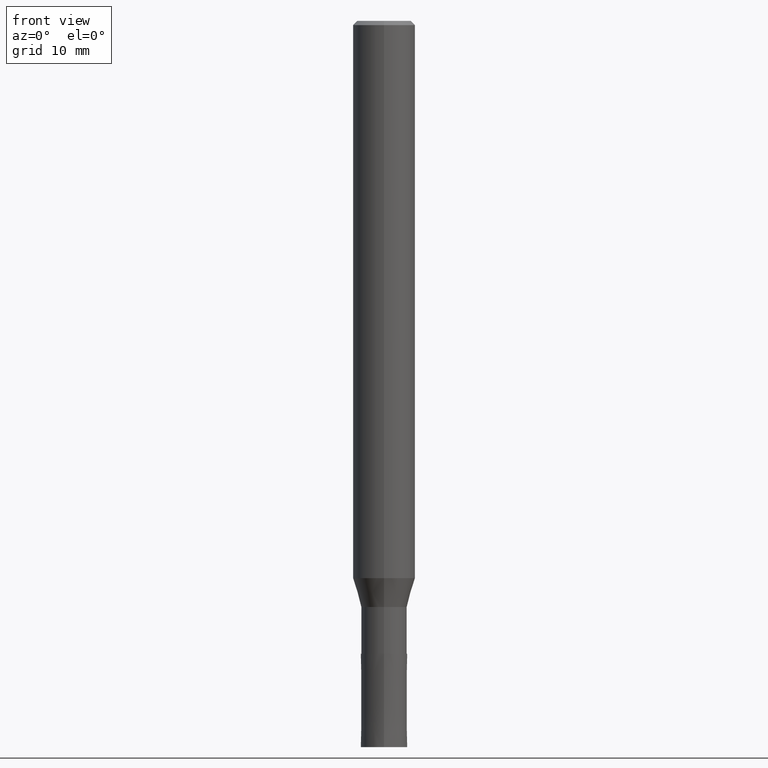
[diagram: clean part render]
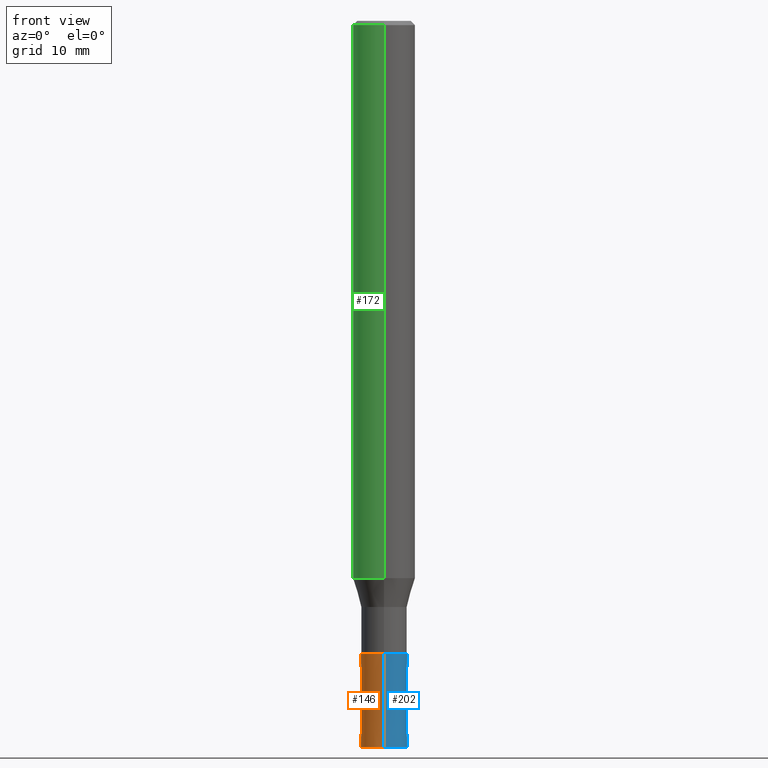
[diagram: same view with three faces highlighted in distinct colors, each labeled with its STEP entity id]
A machine part, front view with three faces highlighted in distinct colors.
Their STEP definitions:

[orange] entity #146 — the highlighted conical surface has half-angle 0.001 deg.
#92=VERTEX_POINT('',#229);
#106=EDGE_CURVE('',#92,#148,#243,.T.);
#134=VERTEX_POINT('',#274);
#136=EDGE_CURVE('',#134,#148,#276,.T.);
#146=ADVANCED_FACE('',(#288),#289,.T.);
#148=VERTEX_POINT('',#291);
#150=VERTEX_POINT('',#293);
#154=EDGE_CURVE('',#92,#150,#297,.T.);
#174=EDGE_CURVE('',#150,#134,#321,.T.);
#229=CARTESIAN_POINT('',(2.75536429610035E-016,-2.25,-70.0));
#243=CIRCLE('',#394,2.25);
#274=CARTESIAN_POINT('',(0.0,2.2499,-61.0));
#276=LINE('',#437,#438);
#288=FACE_OUTER_BOUND('',#451,.T.);
#289=CONICAL_SURFACE('',#452,2.24995,1.11111111106773E-005);
#291=CARTESIAN_POINT('',(0.0,2.25,-70.0));
#293=CARTESIAN_POINT('',(2.75524183546497E-016,-2.2499,-61.0));
#297=LINE('',#462,#463);
#321=CIRCLE('',#493,2.2499);
#394=AXIS2_PLACEMENT_3D('',#551,#552,#553);
#437=CARTESIAN_POINT('',(-2.75530306578266E-016,2.24995,-65.5));
#438=VECTOR('',#591,1.0);
#451=EDGE_LOOP('',(#610,#611,#612,#613));
#452=AXIS2_PLACEMENT_3D('',#614,#615,#616);
#462=CARTESIAN_POINT('',(2.75530306578266E-016,-2.24995,-65.5));
#463=VECTOR('',#620,1.0);
#493=AXIS2_PLACEMENT_3D('',#661,#662,#663);
#551=CARTESIAN_POINT('',(0.0,0.0,-70.0));
#552=DIRECTION('',(0.0,0.0,-1.0));
#553=DIRECTION('',(0.0,1.0,0.0));
#591=DIRECTION('',(-1.36067372638819E-021,1.11111111104487E-005,-0.999999999938272));
#610=ORIENTED_EDGE('',*,*,#136,.T.);
#611=ORIENTED_EDGE('',*,*,#106,.F.);
#612=ORIENTED_EDGE('',*,*,#154,.T.);
#613=ORIENTED_EDGE('',*,*,#174,.T.);
#614=CARTESIAN_POINT('',(0.0,0.0,-65.5));
#615=DIRECTION('',(0.0,-0.0,-1.0));
#616=DIRECTION('',(0.0,1.0,0.0));
#620=DIRECTION('',(-1.36067372638819E-021,1.11111111104487E-005,0.999999999938272));
#661=CARTESIAN_POINT('',(0.0,0.0,-61.0));
#662=DIRECTION('',(0.0,0.0,-1.0));
#663=DIRECTION('',(0.0,1.0,0.0));

[blue] entity #202 — the highlighted conical surface has half-angle 0.001 deg.
#92=VERTEX_POINT('',#229);
#108=EDGE_CURVE('',#148,#92,#245,.T.);
#134=VERTEX_POINT('',#274);
#136=EDGE_CURVE('',#134,#148,#276,.T.);
#138=EDGE_CURVE('',#134,#150,#278,.T.);
#148=VERTEX_POINT('',#291);
#150=VERTEX_POINT('',#293);
#154=EDGE_CURVE('',#92,#150,#297,.T.);
#202=ADVANCED_FACE('',(#353),#354,.T.);
#229=CARTESIAN_POINT('',(2.75536429610035E-016,-2.25,-70.0));
#245=CIRCLE('',#397,2.25);
#274=CARTESIAN_POINT('',(0.0,2.2499,-61.0));
#276=LINE('',#437,#438);
#278=CIRCLE('',#441,2.2499);
#291=CARTESIAN_POINT('',(0.0,2.25,-70.0));
#293=CARTESIAN_POINT('',(2.75524183546497E-016,-2.2499,-61.0));
#297=LINE('',#462,#463);
#353=FACE_OUTER_BOUND('',#531,.T.);
#354=CONICAL_SURFACE('',#532,2.24995,1.11111111106773E-005);
#397=AXIS2_PLACEMENT_3D('',#554,#555,#556);
#437=CARTESIAN_POINT('',(-2.75530306578266E-016,2.24995,-65.5));
#438=VECTOR('',#591,1.0);
#441=AXIS2_PLACEMENT_3D('',#592,#593,#594);
#462=CARTESIAN_POINT('',(2.75530306578266E-016,-2.24995,-65.5));
#463=VECTOR('',#620,1.0);
#531=EDGE_LOOP('',(#696,#697,#698,#699));
#532=AXIS2_PLACEMENT_3D('',#700,#701,#702);
#554=CARTESIAN_POINT('',(0.0,0.0,-70.0));
#555=DIRECTION('',(0.0,0.0,-1.0));
#556=DIRECTION('',(0.0,1.0,0.0));
#591=DIRECTION('',(-1.36067372638819E-021,1.11111111104487E-005,-0.999999999938272));
#592=CARTESIAN_POINT('',(0.0,0.0,-61.0));
#593=DIRECTION('',(0.0,0.0,-1.0));
#594=DIRECTION('',(0.0,1.0,0.0));
#620=DIRECTION('',(-1.36067372638819E-021,1.11111111104487E-005,0.999999999938272));
#696=ORIENTED_EDGE('',*,*,#136,.F.);
#697=ORIENTED_EDGE('',*,*,#138,.T.);
#698=ORIENTED_EDGE('',*,*,#154,.F.);
#699=ORIENTED_EDGE('',*,*,#108,.F.);
#700=CARTESIAN_POINT('',(0.0,0.0,-65.5));
#701=DIRECTION('',(0.0,-0.0,-1.0));
#702=DIRECTION('',(0.0,1.0,0.0));

[green] entity #172 — the highlighted cylindrical surface (edge-blend (fillet) strip) has radius 3 mm, axis along (-0, -0, 1).
#100=EDGE_CURVE('',#114,#132,#237,.T.);
#114=VERTEX_POINT('',#252);
#116=VERTEX_POINT('',#254);
#118=EDGE_CURVE('',#180,#132,#256,.T.);
#132=VERTEX_POINT('',#272);
#164=EDGE_CURVE('',#116,#114,#309,.T.);
#172=ADVANCED_FACE('',(#318),#319,.T.);
#180=VERTEX_POINT('',#327);
#190=EDGE_CURVE('',#180,#116,#341,.T.);
#237=LINE('',#384,#385);
#252=CARTESIAN_POINT('',(0.0,3.0,-0.399999999999999));
#254=CARTESIAN_POINT('',(3.67381906146713E-016,-3.0,-0.399999999999999));
#256=CIRCLE('',#411,3.0);
#272=CARTESIAN_POINT('',(0.0,3.0,-53.71));
#309=CIRCLE('',#477,3.0);
#318=FACE_OUTER_BOUND('',#489,.T.);
#319=CYLINDRICAL_SURFACE('',#490,3.0);
#327=CARTESIAN_POINT('',(3.67381906146713E-016,-3.0,-53.71));
#341=LINE('',#518,#519);
#384=CARTESIAN_POINT('',(-3.67381906146713E-016,3.0,-27.055));
#385=VECTOR('',#549,1.0);
#411=AXIS2_PLACEMENT_3D('',#564,#565,#566);
#477=AXIS2_PLACEMENT_3D('',#638,#639,#640);
#489=EDGE_LOOP('',(#654,#655,#656,#657));
#490=AXIS2_PLACEMENT_3D('',#658,#659,#660);
#518=CARTESIAN_POINT('',(3.67381906146713E-016,-3.0,-27.055));
#519=VECTOR('',#690,1.0);
#549=DIRECTION('',(0.0,0.0,-1.0));
#564=CARTESIAN_POINT('',(0.0,0.0,-53.71));
#565=DIRECTION('',(0.0,0.0,-1.0));
#566=DIRECTION('',(0.0,1.0,0.0));
#638=CARTESIAN_POINT('',(0.0,0.0,-0.399999999999999));
#639=DIRECTION('',(0.0,0.0,-1.0));
#640=DIRECTION('',(0.0,1.0,0.0));
#654=ORIENTED_EDGE('',*,*,#100,.T.);
#655=ORIENTED_EDGE('',*,*,#118,.F.);
#656=ORIENTED_EDGE('',*,*,#190,.T.);
#657=ORIENTED_EDGE('',*,*,#164,.T.);
#658=CARTESIAN_POINT('',(0.0,0.0,-27.055));
#659=DIRECTION('',(-0.0,-0.0,1.0));
#660=DIRECTION('',(0.0,1.0,0.0));
#690=DIRECTION('',(-0.0,-0.0,1.0));